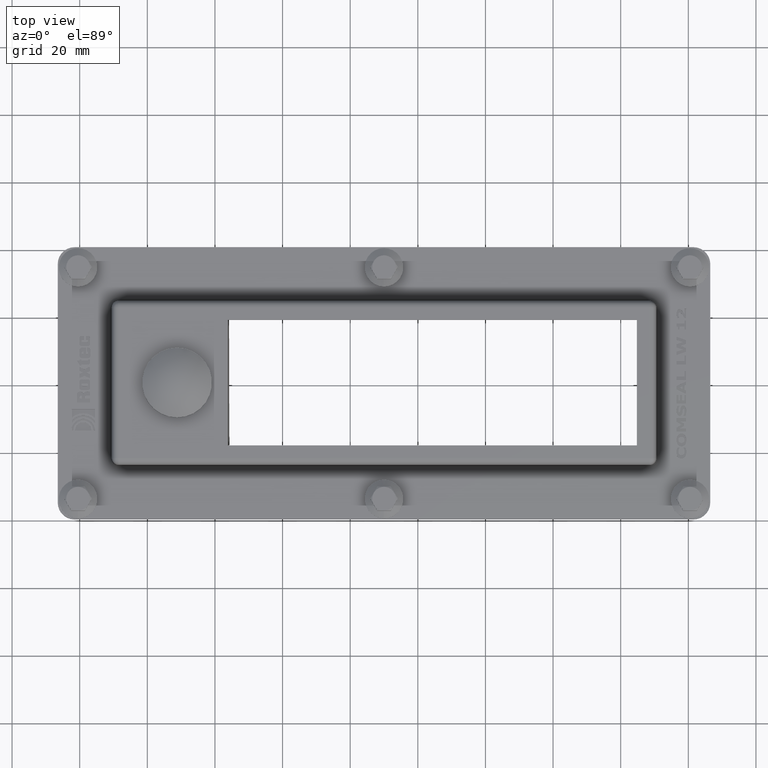
[diagram: clean part render]
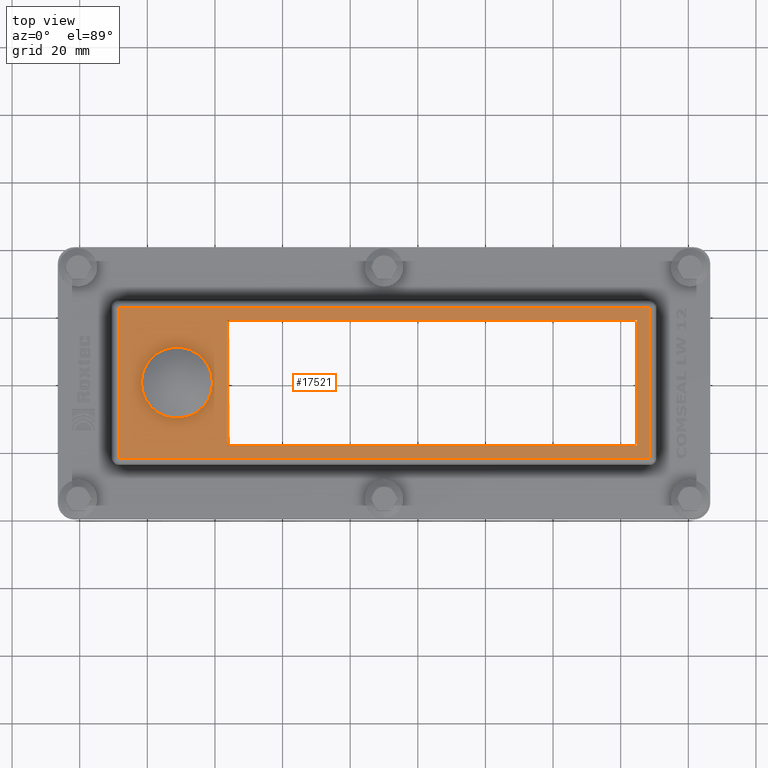
[diagram: same view with one face highlighted and labeled with its STEP entity id]
A machine part, top view. The second image highlights one B-rep face of the part: STEP entity #17521.
In plain terms, the highlighted planar face has unit normal (0, 0, 1).
Its self-contained STEP definition (entity closure, byte-faithful):
#17139=CARTESIAN_POINT('',(48.517377578810077,-22.267377578810013,23.0));
#17140=VERTEX_POINT('',#17139);
#17148=CARTESIAN_POINT('',(-108.51737757881006,-22.26737757881002,23.0));
#17149=VERTEX_POINT('',#17148);
#17150=CARTESIAN_POINT('',(48.517377578810084,-22.26737757881002,23.0));
#17151=DIRECTION('',(-1.0,0.0,0.0));
#17152=VECTOR('',#17151,157.03475515762017);
#17153=LINE('',#17150,#17152);
#17154=EDGE_CURVE('',#17140,#17149,#17153,.T.);
#17179=CARTESIAN_POINT('',(-108.51737757881006,22.267377578810038,23.0));
#17180=VERTEX_POINT('',#17179);
#17181=CARTESIAN_POINT('',(-108.51737757881004,-22.267377578810024,23.0));
#17182=DIRECTION('',(0.0,1.0,0.0));
#17183=VECTOR('',#17182,44.534755157620069);
#17184=LINE('',#17181,#17183);
#17185=EDGE_CURVE('',#17149,#17180,#17184,.T.);
#17228=CARTESIAN_POINT('',(48.51737757881007,22.267377578810056,23.0));
#17229=VERTEX_POINT('',#17228);
#17230=CARTESIAN_POINT('',(-108.51737757881006,22.267377578810034,23.0));
#17231=DIRECTION('',(1.0,0.0,0.0));
#17232=VECTOR('',#17231,157.03475515762011);
#17233=LINE('',#17230,#17232);
#17234=EDGE_CURVE('',#17180,#17229,#17233,.T.);
#17285=CARTESIAN_POINT('',(48.51737757881007,22.267377578810056,23.0));
#17286=DIRECTION('',(0.0,-1.0,0.0));
#17287=VECTOR('',#17286,44.534755157620069);
#17288=LINE('',#17285,#17287);
#17289=EDGE_CURVE('',#17229,#17140,#17288,.T.);
#17465=CARTESIAN_POINT('',(-29.999999999999982,1.223510E-014,23.0));
#17466=DIRECTION('',(0.0,0.0,1.0));
#17467=DIRECTION('',(1.0,0.0,0.0));
#17468=AXIS2_PLACEMENT_3D('',#17465,#17466,#17467);
#17469=PLANE('',#17468);
#17470=ORIENTED_EDGE('',*,*,#17185,.F.);
#17471=ORIENTED_EDGE('',*,*,#17154,.F.);
#17472=ORIENTED_EDGE('',*,*,#17289,.F.);
#17473=ORIENTED_EDGE('',*,*,#17234,.F.);
#17474=EDGE_LOOP('',(#17470,#17471,#17472,#17473));
#17475=FACE_OUTER_BOUND('',#17474,.T.);
#17476=CARTESIAN_POINT('',(-76.220740230695668,18.550000000000008,22.999999999999993));
#17477=VERTEX_POINT('',#17476);
#17478=CARTESIAN_POINT('',(44.800000000000026,18.550000000000018,23.0));
#17479=VERTEX_POINT('',#17478);
#17480=CARTESIAN_POINT('',(-76.220740230695668,18.550000000000008,23.0));
#17481=DIRECTION('',(1.0,0.0,0.0));
#17482=VECTOR('',#17481,121.02074023069569);
#17483=LINE('',#17480,#17482);
#17484=EDGE_CURVE('',#17477,#17479,#17483,.T.);
#17485=ORIENTED_EDGE('',*,*,#17484,.T.);
#17486=CARTESIAN_POINT('',(44.800000000000026,-18.550000000000001,23.0));
#17487=VERTEX_POINT('',#17486);
#17488=CARTESIAN_POINT('',(44.800000000000026,18.550000000000018,23.0));
#17489=DIRECTION('',(0.0,-1.0,0.0));
#17490=VECTOR('',#17489,37.100000000000023);
#17491=LINE('',#17488,#17490);
#17492=EDGE_CURVE('',#17479,#17487,#17491,.T.);
#17493=ORIENTED_EDGE('',*,*,#17492,.T.);
#17494=CARTESIAN_POINT('',(-76.220740230695668,-18.550000000000004,22.999999999999993));
#17495=VERTEX_POINT('',#17494);
#17496=CARTESIAN_POINT('',(44.800000000000026,-18.550000000000001,23.0));
#17497=DIRECTION('',(-1.0,0.0,0.0));
#17498=VECTOR('',#17497,121.02074023069569);
#17499=LINE('',#17496,#17498);
#17500=EDGE_CURVE('',#17487,#17495,#17499,.T.);
#17501=ORIENTED_EDGE('',*,*,#17500,.T.);
#17502=CARTESIAN_POINT('',(-76.220740230695668,-18.550000000000004,22.999999999999993));
#17503=DIRECTION('',(0.0,1.0,0.0));
#17504=VECTOR('',#17503,37.100000000000009);
#17505=LINE('',#17502,#17504);
#17506=EDGE_CURVE('',#17495,#17477,#17505,.T.);
#17507=ORIENTED_EDGE('',*,*,#17506,.T.);
#17508=EDGE_LOOP('',(#17485,#17493,#17501,#17507));
#17509=FACE_BOUND('',#17508,.T.);
#17510=CARTESIAN_POINT('',(-80.720740230695682,9.612509E-015,23.0));
#17511=VERTEX_POINT('',#17510);
#17512=CARTESIAN_POINT('',(-91.220740230695696,8.326673E-015,23.0));
#17513=DIRECTION('',(0.0,0.0,1.0));
#17514=DIRECTION('',(-1.0,0.0,0.0));
#17515=AXIS2_PLACEMENT_3D('',#17512,#17513,#17514);
#17516=CIRCLE('',#17515,10.5);
#17517=EDGE_CURVE('',#17511,#17511,#17516,.T.);
#17518=ORIENTED_EDGE('',*,*,#17517,.F.);
#17519=EDGE_LOOP('',(#17518));
#17520=FACE_BOUND('',#17519,.T.);
#17521=ADVANCED_FACE('',(#17475,#17509,#17520),#17469,.T.);